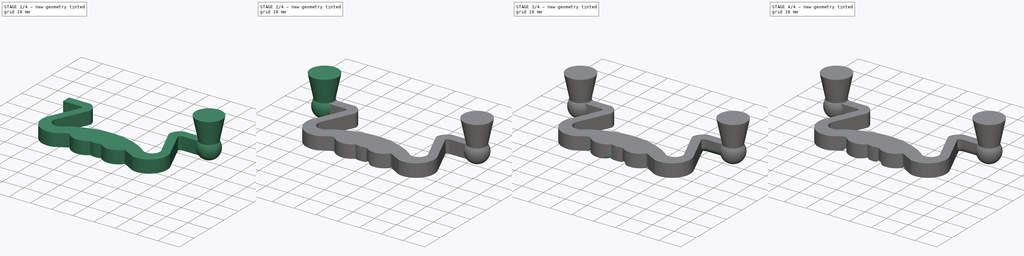
[diagram: build sequence overview — one tinted view per stage of 4, left to right]
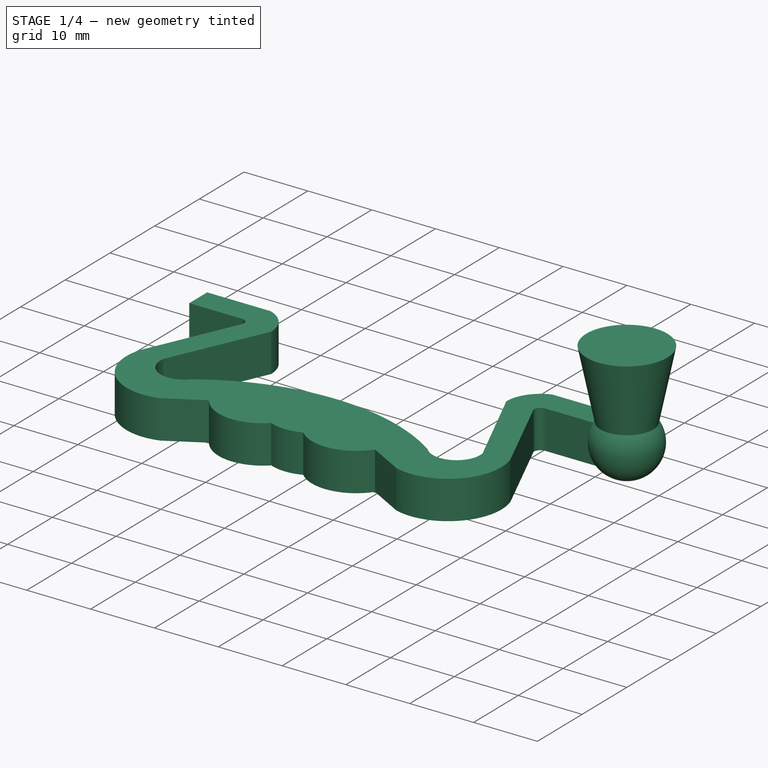
[diagram: stage 1 of 4 — iso view after this stage's code; geometry added in this stage tinted green]
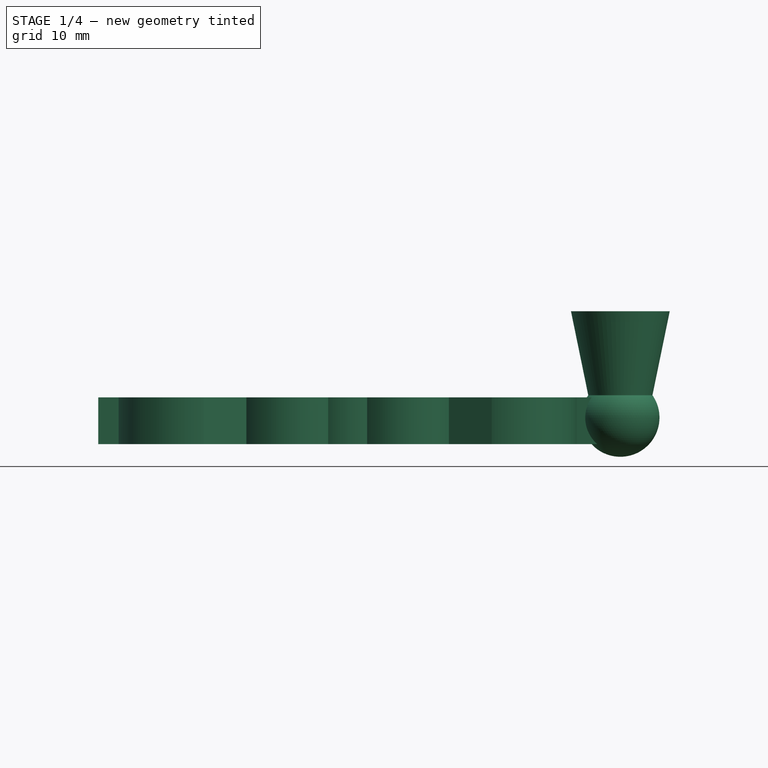
[diagram: stage 1 of 4 — front view after this stage's code; geometry added in this stage tinted green]
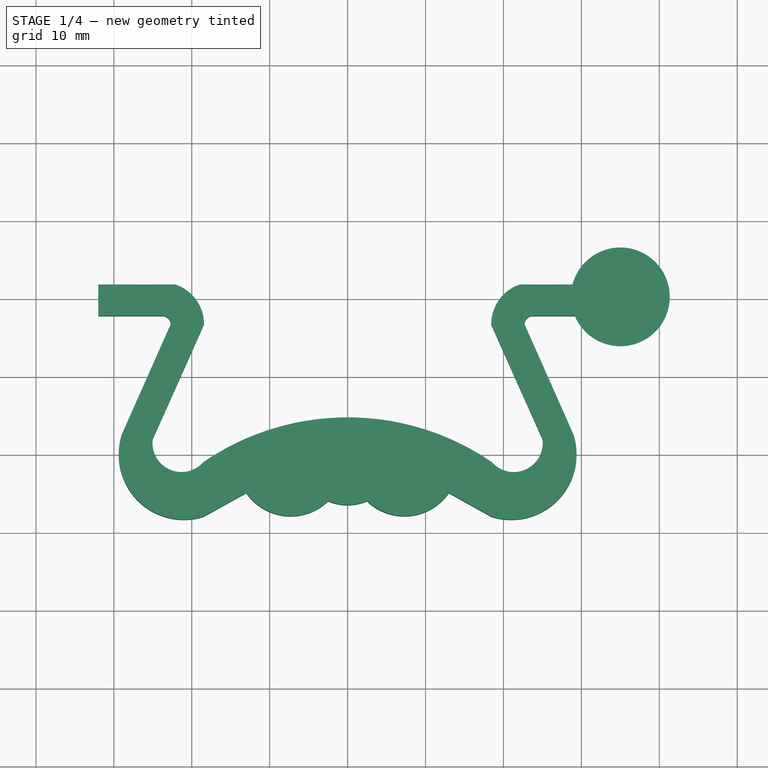
[diagram: stage 1 of 4 — top view after this stage's code; geometry added in this stage tinted green]
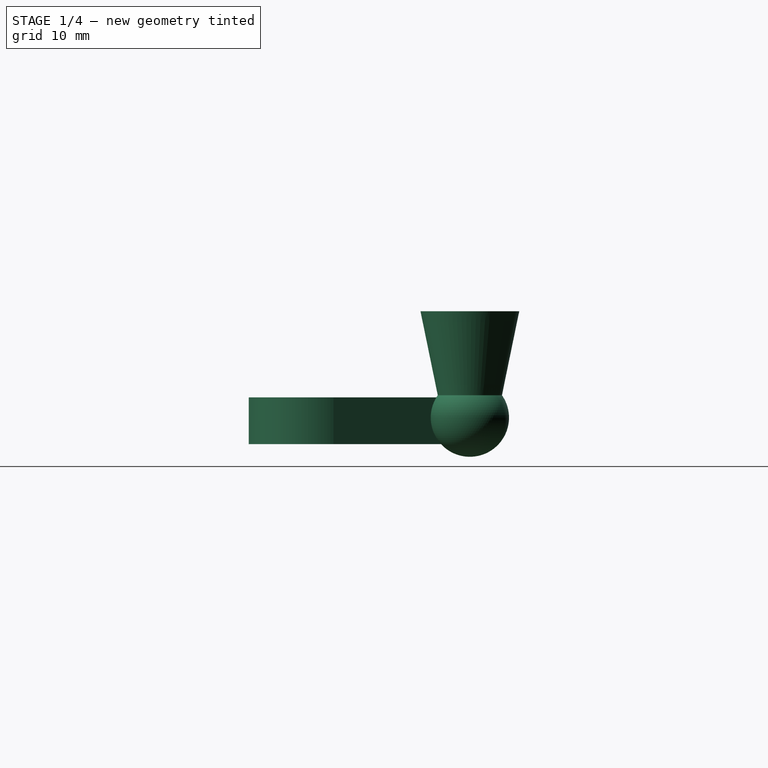
[diagram: stage 1 of 4 — right view after this stage's code; geometry added in this stage tinted green]
FCSTD DOCUMENT  (FreeCAD 1.1R20260325 (Git shallow))
Label: msf077
License: All rights reserved
LicenseURL: https://en.wikipedia.org/wiki/All_rights_reserved
objects: Sketcher::SketchObject×5, PartDesign::Pocket×3, PartDesign::Mirrored×2, PartDesign::MultiTransform×2, PartDesign::Fillet×2, App::LinkGroup×2, App::Point×2, PartDesign::Pad×1, PartDesign::Revolution×1, PartDesign::Chamfer×1, PartDesign::Body×1, App::Part×1
note: 43 computed .brp shape members not serialized (recipe doc carries the construction recipe); baked Part::Feature solids carry a one-line shape summary decoded from their .brp

FEATURE [Sketcher::SketchObject] Sketch
  ArcFitTolerance = 0
  ExternalTypes = [0]
  FullyConstrained = true
  MakeInternals = false
  MapMode = 5
  _ExternalGeoVersion = 0
  sketch-geometry (24):
    g0: LineSegment StartX=-32 StartY=1.78 StartZ=0 EndX=-32 EndY=-2.22 EndZ=0
    g1: LineSegment StartX=-32 StartY=-2.22 StartZ=0 EndX=-23.78 EndY=-2.22 EndZ=0
    g2: ArcOfCircle CenterX=-23.78 CenterY=-3.3 CenterZ=0 NormalX=0 NormalY=0 NormalZ=1 AngleXU=0 Radius=1.08 StartAngle=-1.8e-15 EndAngle=1.5708
    g3: LineSegment StartX=-22.7 StartY=-3.3 StartZ=0 EndX=-29 EndY=-17.5 EndZ=0
    g4: ArcOfCircle CenterX=-21 CenterY=-20 CenterZ=0 NormalX=0 NormalY=0 NormalZ=1 AngleXU=0 Radius=8.38153 StartAngle=2.83871 EndAngle=5.01527
    g5: LineSegment StartX=-18.5 StartY=-28 StartZ=0 EndX=-13 EndY=-24.9433 EndZ=0
    g6: ArcOfCircle CenterX=-7.3 CenterY=-21 CenterZ=0 NormalX=0 NormalY=0 NormalZ=1 AngleXU=0 Radius=6.93109 StartAngle=3.7468 EndAngle=5.47738
    g7: ArcOfCircle CenterX=9e-16 CenterY=-20 CenterZ=0 NormalX=0 NormalY=0 NormalZ=1 AngleXU=0 Radius=6.5 StartAngle=4.3176 EndAngle=5.10718
    g8: ArcOfCircle CenterX=7.3 CenterY=-21 CenterZ=0 NormalX=0 NormalY=0 NormalZ=1 AngleXU=0 Radius=6.93109 StartAngle=3.9474 EndAngle=5.67797
    g9: LineSegment StartX=13 StartY=-24.9433 StartZ=0 EndX=18.5 EndY=-28 EndZ=0
    g10: ArcOfCircle CenterX=21 CenterY=-20 CenterZ=0 NormalX=0 NormalY=0 NormalZ=1 AngleXU=0 Radius=8.38153 StartAngle=4.4095 EndAngle=6.58607
    g11: LineSegment StartX=29 StartY=-17.5 StartZ=0 EndX=22.7 EndY=-3.3 EndZ=0
    g12: ArcOfCircle CenterX=23.78 CenterY=-3.3 CenterZ=0 NormalX=0 NormalY=0 NormalZ=1 AngleXU=0 Radius=1.08 StartAngle=1.5708 EndAngle=3.14159
    g13: LineSegment StartX=23.78 StartY=-2.22 StartZ=0 EndX=32 EndY=-2.22 EndZ=0
    g14: LineSegment StartX=32 StartY=-2.22 StartZ=0 EndX=32 EndY=1.78 EndZ=0
    g15: LineSegment StartX=32 StartY=1.78 StartZ=0 EndX=22.1 EndY=1.78 EndZ=0
    g16: ArcOfCircle CenterX=23.78 CenterY=-3.3 CenterZ=0 NormalX=0 NormalY=0 NormalZ=1 AngleXU=0 Radius=5.35059 StartAngle=1.89018 EndAngle=3.14159
    g17: LineSegment StartX=18.4294 StartY=-3.3 StartZ=0 EndX=25 EndY=-18 EndZ=0
    g18: ArcOfCircle CenterX=21.3162 CenterY=-18.56 CenterZ=0 NormalX=0 NormalY=0 NormalZ=1 AngleXU=0 Radius=3.72617 StartAngle=3.85555 EndAngle=6.43405
    g19: ArcOfCircle CenterX=-2e-15 CenterY=-48 CenterZ=0 NormalX=0 NormalY=0 NormalZ=1 AngleXU=0 Radius=32.73 StartAngle=0.970083 EndAngle=2.17151
    g20: ArcOfCircle CenterX=-21.3162 CenterY=-18.56 CenterZ=0 NormalX=0 NormalY=0 NormalZ=1 AngleXU=0 Radius=3.72617 StartAngle=2.99073 EndAngle=5.56923
    g21: LineSegment StartX=-25 StartY=-18 StartZ=0 EndX=-18.4294 EndY=-3.3 EndZ=0
    g22: ArcOfCircle CenterX=-23.78 CenterY=-3.3 CenterZ=0 NormalX=0 NormalY=0 NormalZ=1 AngleXU=0 Radius=5.35059 StartAngle=0 EndAngle=1.25141
    g23: LineSegment StartX=-22.1 StartY=1.78 StartZ=0 EndX=-32 EndY=1.78 EndZ=0
  constraints (71):
    c: Vertical(g0)
    c: Coincident(g0,g1)
    c: Horizontal(g1)
    c: Coincident(g2,g1)
    c: Coincident(g3,g2)
    c: Coincident(g4,g3)
    c: Coincident(g5,g4)
    c: Coincident(g6,g5)
    c: Coincident(g7,g6)
    c: Coincident(g8,g7)
    c: Coincident(g9,g8)
    c: Coincident(g10,g9)
    c: Coincident(g11,g10)
    c: Coincident(g12,g11)
    c: Coincident(g13,g12)
    c: Horizontal(g13)
    c: Coincident(g14,g13)
    c: Vertical(g14)
    c: Coincident(g15,g14)
    c: Horizontal(g15)
    c: Coincident(g16,g15)
    c: Coincident(g17,g16)
    c: Coincident(g18,g17)
    c: Coincident(g19,g18)
    c: Coincident(g20,g19)
    c: Coincident(g21,g20)
    c: Coincident(g22,g21)
    c: Coincident(g23,g22)
    c: Coincident(g23,g0)
    c: Horizontal(g18,g19)
    c: Symmetric(g6,g8,g-2)
    c: Symmetric(g5,g8,g-2)
    c: Symmetric(g20,g17,g-2)
    c: Symmetric(g3,g10,g-2)
    c: Symmetric(g0,g14,g-2)
    c: Symmetric(g22,g15,g-2)
    c: Symmetric(g1,g12,g-2)
    c: Symmetric(g16,g21,g-2)
    c: Symmetric(g2,g11,g-2)
    c: Symmetric(g4,g9,g-2)
    c: Symmetric(g20,g18,g-2)
    c: DistanceX(g14) = 32
    c: DistanceX(g15,g15) = 9.9
    c: DistanceX(g-1,g9) = 18.5
    c: DistanceX(g6,g-1) = 2.5
    c: DistanceX(g6,g-1) = 7.3
    c: DistanceX(g5,g-1) = 13
    c: DistanceX(g19,g-1) = 18.5
    c: DistanceX(g3,g-1) = 29
    c: DistanceX(g20,g-1) = 25
    c: DistanceY(g7,g-1) = 26
    c: DistanceY(g7,g-1) = 20
    c: Horizontal(g7,g6)
    c: DistanceY(g6,g-1) = 21
    c: DistanceY(g4,g-1) = 20
    c: DistanceY(g20,g-1) = 18.56
    c: DistanceX(g4,g-1) = 21
    c: DistanceY(g10,g-1) = 17.5
    c: DistanceY(g17,g-1) = 18
    c: Horizontal(g10,g4)
    c: Coincident(g16,g12)
    c: Coincident(g22,g2)
    c: DistanceY(g2,g-1) = 3.3
    c: DistanceX(g2,g-1) = 23.78
    c: Vertical(g12,g12)
    c: Horizontal(g11,g12)
    c: DistanceY(g2,g1) = 1.08
    c: DistanceY(g14,g14) = 4
    c: Horizontal(g2,g21)
    c: DistanceY(g19,g-1) = 21
    c: DistanceY(g19,g-1) = 48
FEATURE [PartDesign::Pad] Pad
  Direction = (0,0,1)
  Length = 6
  Length2 = 10
  Profile = -> Sketch
  ReferenceAxis = -> Sketch [N_Axis]
  SideType = 0
  Suppressed = false
  Type = 0
  Type2 = 0
FEATURE [Sketcher::SketchObject] Sketch001
  ArcFitTolerance = 0
  AttachmentOffset = pos=(0,3,3) rot=(0,0,1;4.71239rad)
  ExternalTypes = [0]
  FullyConstrained = true
  MakeInternals = false
  MapMode = 5
  Placement = pos=(35,0,3) rot=(0,1,0;1.5708rad)
  _ExternalGeoVersion = 0
  sketch-geometry (4):
    g0: ArcOfCircle CenterX=-0.404329 CenterY=0 CenterZ=0 NormalX=0 NormalY=0 NormalZ=1 AngleXU=0 Radius=5.02433 StartAngle=4.10302 EndAngle=6.28319
    g1: LineSegment StartX=-3.28 StartY=-4.12 StartZ=0 EndX=-14.06 EndY=-6.34 EndZ=0
    g2: LineSegment StartX=-14.06 StartY=-6.34 StartZ=0 EndX=-14.06 EndY=0 EndZ=0
    g3: LineSegment StartX=-14.06 StartY=0 StartZ=0 EndX=4.62 EndY=-1.2e-15 EndZ=0
  constraints (13):
    c: PointOnObject(g0,g-1)
    c: Coincident(g1,g0)
    c: Coincident(g2,g1)
    c: PointOnObject(g2,g-1)
    c: Vertical(g2)
    c: Coincident(g3,g2)
    c: Coincident(g3,g0)
    c: DistanceY(g2,g2) = 6.34
    c: PointOnObject(g0,g3)
    c: DistanceX(g-1,g0) = 4.62
    c: DistanceX(g0,g-1) = 3.28
    c: DistanceY(g0,g-1) = 4.12
    c: DistanceX(g1,g-1) = 14.06
FEATURE [PartDesign::Revolution] Revolution
  Angle = 360
  Angle2 = 0
  Axis = (2e-16,0,-1)
  Base = (35,0,3)
  BaseFeature = -> Pad
  FuseOrder = 0
  Profile = -> Sketch001
  ReferenceAxis = -> Sketch001 [H_Axis]
  Reversed = true
  Suppressed = false
  Type = 0
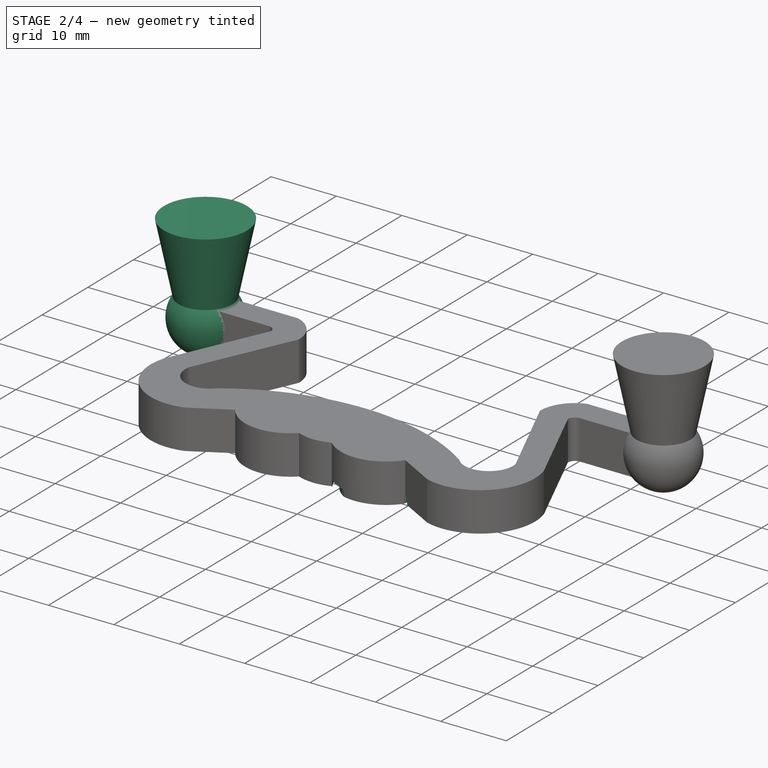
[diagram: stage 2 of 4 — iso view after this stage's code; geometry added in this stage tinted green]
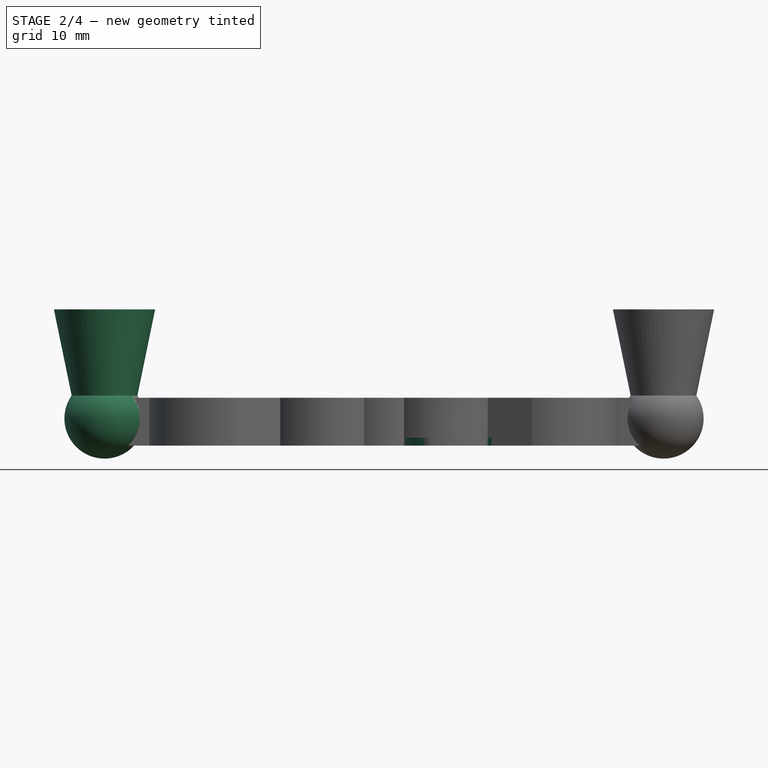
[diagram: stage 2 of 4 — front view after this stage's code; geometry added in this stage tinted green]
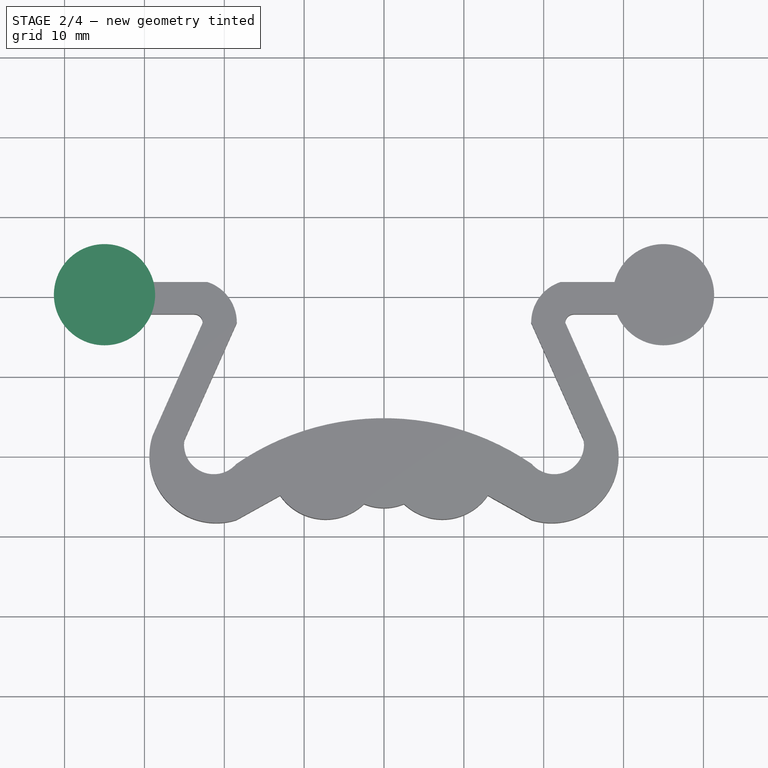
[diagram: stage 2 of 4 — top view after this stage's code; geometry added in this stage tinted green]
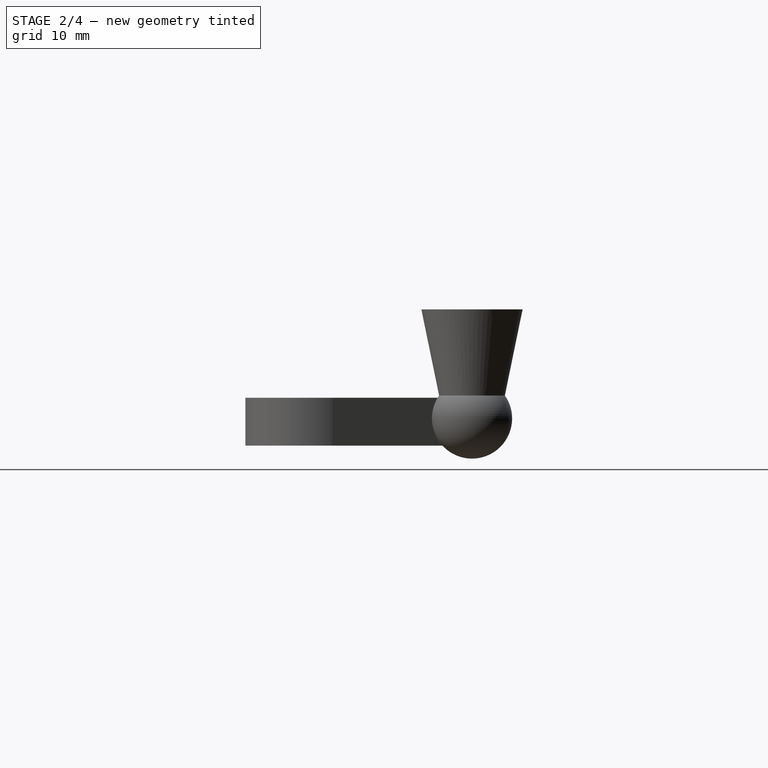
[diagram: stage 2 of 4 — right view after this stage's code; geometry added in this stage tinted green]
FEATURE [PartDesign::Mirrored] Mirrored
  MirrorPlane = -> YZ_Plane001
  Suppressed = false
  TransformMode = 0
FEATURE [PartDesign::MultiTransform] MultiTransform
  BaseFeature = -> Revolution
  Originals = -> [Revolution]
  Suppressed = false
  TransformMode = 0
  Transformations = -> [Mirrored]
FEATURE [Sketcher::SketchObject] Sketch002
  ArcFitTolerance = 0
  ExternalTypes = [0]
  FullyConstrained = false
  MakeInternals = false
  MapMode = 5
  Placement = pos=(0,0,0) rot=(1,0,0;3.14159rad)
  _ExternalGeoVersion = 0
  sketch-geometry (6):
    g0: ArcOfCircle CenterX=8.37325 CenterY=23.2848 CenterZ=0 NormalX=0 NormalY=0 NormalZ=1 AngleXU=0 Radius=5.42921 StartAngle=4.33984 EndAngle=6.97405
    g1: ArcOfCircle CenterX=7.9611 CenterY=22.3638 CenterZ=0 NormalX=0 NormalY=0 NormalZ=1 AngleXU=0 Radius=4.42164 StartAngle=0.796764 EndAngle=4.35084
    g2: ArcOfCircle CenterX=8.91823 CenterY=22.7616 CenterZ=0 NormalX=0 NormalY=0 NormalZ=1 AngleXU=0 Radius=2.4556 StartAngle=0.183027 EndAngle=3.90789
    g3: ArcOfCircle CenterX=9.44753 CenterY=23.8657 CenterZ=0 NormalX=0 NormalY=0 NormalZ=1 AngleXU=0 Radius=3.62796 StartAngle=4.02624 EndAngle=7.06929
    g4: LineSegment StartX=11.3328 StartY=23.2085 StartZ=0 EndX=11.0519 EndY=25.5257 EndZ=0
    g5: LineSegment StartX=12.0111 StartY=26.4328 StartZ=0 EndX=12.5575 EndY=26.7442 EndZ=0
  constraints (6):
    c: Coincident(g1,g0)
    c: Coincident(g3,g2)
    c: Coincident(g4,g2)
    c: Coincident(g4,g1)
    c: Coincident(g5,g3)
    c: Coincident(g5,g0)
FEATURE [PartDesign::Pocket] Pocket
  BaseFeature = -> MultiTransform
  Direction = (0,1e-16,1)
  Length = 1
  Length2 = 5
  Profile = -> Sketch002
  ReferenceAxis = -> Sketch002 [N_Axis]
  SideType = 0
  Suppressed = false
  Type = 0
  Type2 = 0
FEATURE [Sketcher::SketchObject] Sketch003
  ArcFitTolerance = 0
  ExternalTypes = [0]
  FullyConstrained = false
  MakeInternals = false
  MapMode = 5
  Placement = pos=(0,0,0) rot=(1,0,0;3.14159rad)
  _ExternalGeoVersion = 0
  sketch-geometry (4):
    g0: ArcOfCircle CenterX=8.78863 CenterY=22.2095 CenterZ=0 NormalX=0 NormalY=0 NormalZ=1 AngleXU=0 Radius=6.37434 StartAngle=1.16895 EndAngle=5.27179
    g1: ArcOfCircle CenterX=8.78863 CenterY=22.2095 CenterZ=0 NormalX=0 NormalY=0 NormalZ=1 AngleXU=0 Radius=7.27003 StartAngle=1.46029 EndAngle=5.028
    g2: LineSegment StartX=9.59035 StartY=29.4352 StartZ=0 EndX=11.2818 EndY=28.0761 EndZ=0
    g3: LineSegment StartX=11.0452 StartY=15.2986 StartZ=0 EndX=12.1714 EndY=16.8068 EndZ=0
  constraints (5):
    c: Coincident(g2,g1)
    c: Coincident(g2,g0)
    c: Coincident(g3,g1)
    c: Coincident(g3,g0)
    c: Coincident(g0,g1)
FEATURE [PartDesign::Pocket] Pocket001
  BaseFeature = -> Pocket
  Direction = (0,1e-16,1)
  Length = 1
  Length2 = 5
  Profile = -> Sketch003
  ReferenceAxis = -> Sketch003 [N_Axis]
  SideType = 0
  Suppressed = false
  Type = 0
  Type2 = 0
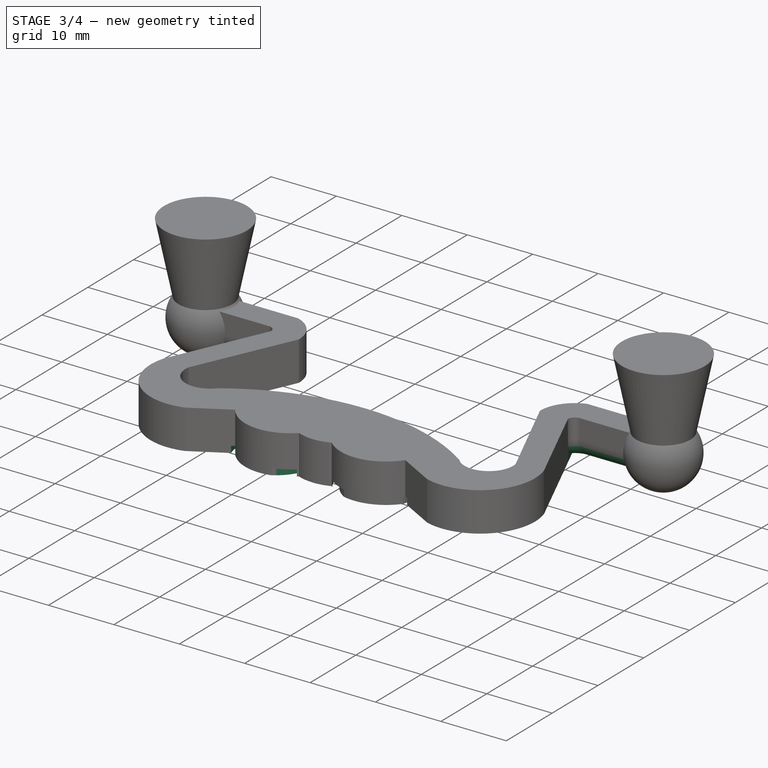
[diagram: stage 3 of 4 — iso view after this stage's code; geometry added in this stage tinted green]
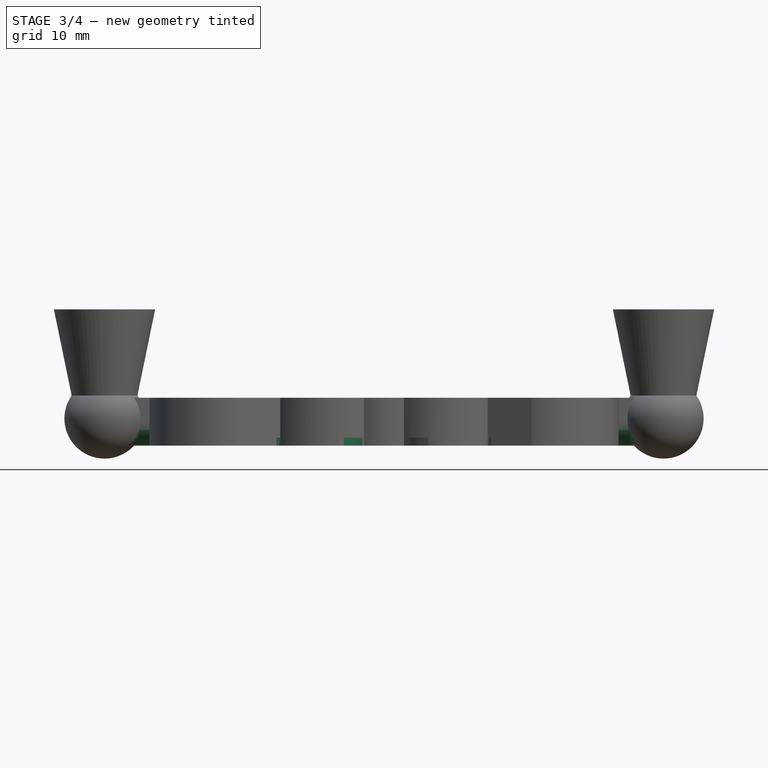
[diagram: stage 3 of 4 — front view after this stage's code; geometry added in this stage tinted green]
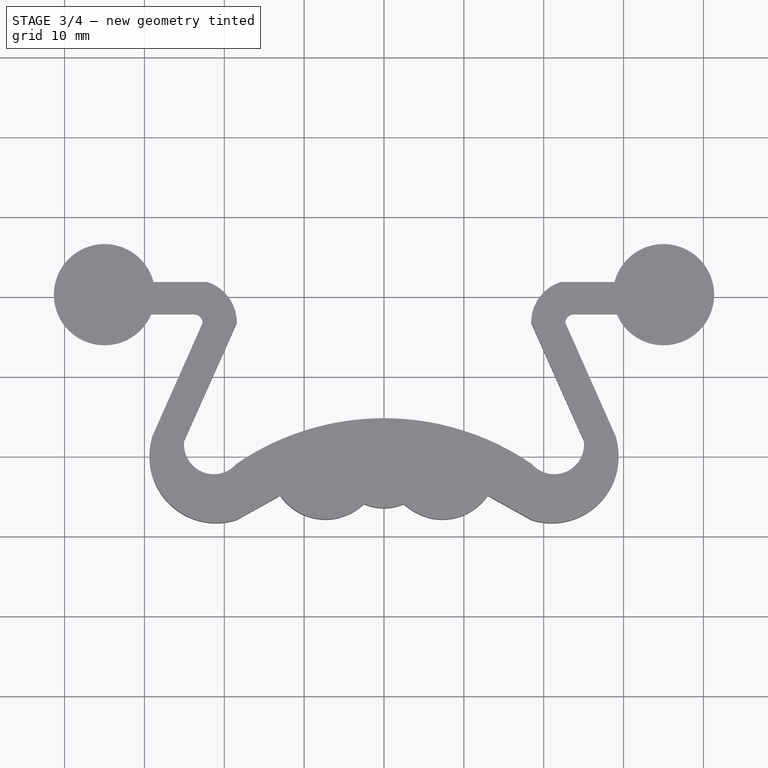
[diagram: stage 3 of 4 — top view after this stage's code; geometry added in this stage tinted green]
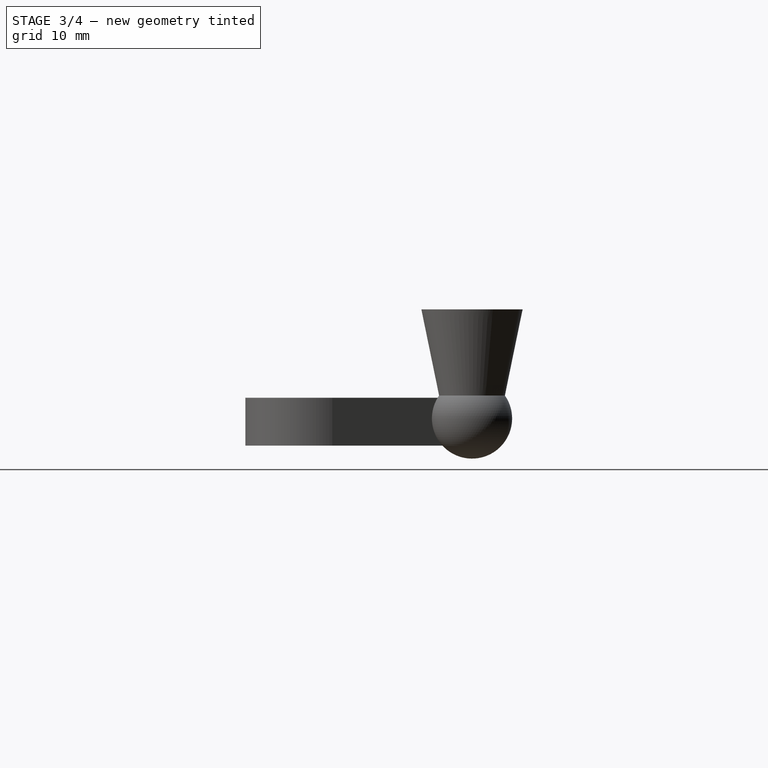
[diagram: stage 3 of 4 — right view after this stage's code; geometry added in this stage tinted green]
FEATURE [Sketcher::SketchObject] Sketch004
  ArcFitTolerance = 0
  ExternalTypes = [0]
  FullyConstrained = false
  MakeInternals = false
  MapMode = 5
  Placement = pos=(0,0,0) rot=(1,0,0;3.14159rad)
  _ExternalGeoVersion = 0
  sketch-geometry (4):
    g0: LineSegment StartX=3.03254 StartY=13.6466 StartZ=0 EndX=0 EndY=19.9742 EndZ=0
    g1: LineSegment StartX=2.14295 StartY=13.4233 StartZ=0 EndX=0 EndY=18.4771 EndZ=0
    g2: LineSegment StartX=0 StartY=19.9742 StartZ=0 EndX=0 EndY=18.4771 EndZ=0
    g3: LineSegment StartX=2.14295 StartY=13.4233 StartZ=0 EndX=3.03254 EndY=13.6466 EndZ=0
  constraints (6):
    c: PointOnObject(g0,g-2)
    c: PointOnObject(g1,g-2)
    c: Coincident(g2,g0)
    c: Coincident(g2,g1)
    c: Coincident(g3,g1)
    c: Coincident(g3,g0)
FEATURE [PartDesign::Pocket] Pocket002
  BaseFeature = -> Pocket001
  Direction = (0,1e-16,1)
  Length = 1
  Length2 = 5
  Profile = -> Sketch004
  ReferenceAxis = -> Sketch004 [N_Axis]
  SideType = 0
  Suppressed = false
  Type = 0
  Type2 = 0
FEATURE [PartDesign::Mirrored] Mirrored001
  MirrorPlane = -> YZ_Plane001
  Suppressed = false
  TransformMode = 0
FEATURE [PartDesign::MultiTransform] MultiTransform001
  BaseFeature = -> Pocket002
  Originals = -> [Pocket,Pocket001,Pocket002]
  Suppressed = false
  TransformMode = 0
  Transformations = -> [Mirrored001]
FEATURE [PartDesign::Fillet] Fillet
  Base = -> MultiTransform001 [Edge104,Edge17,Edge4,Edge98]
  BaseFeature = -> MultiTransform001
  Radius = 3
  SupportTransform = false
  Suppressed = false
  UseAllEdges = false
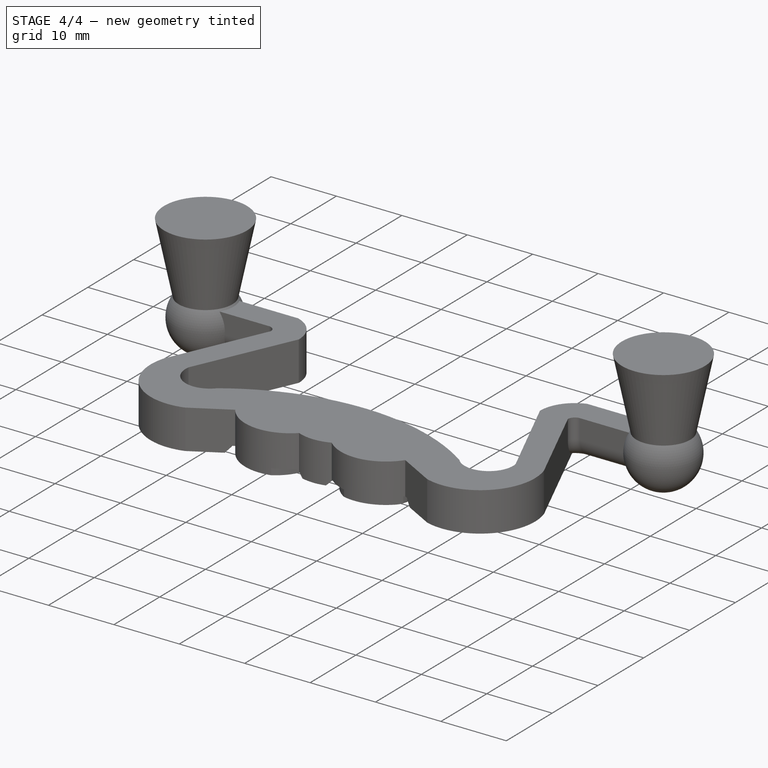
[diagram: stage 4 of 4 — iso view after this stage's code; geometry added in this stage tinted green]
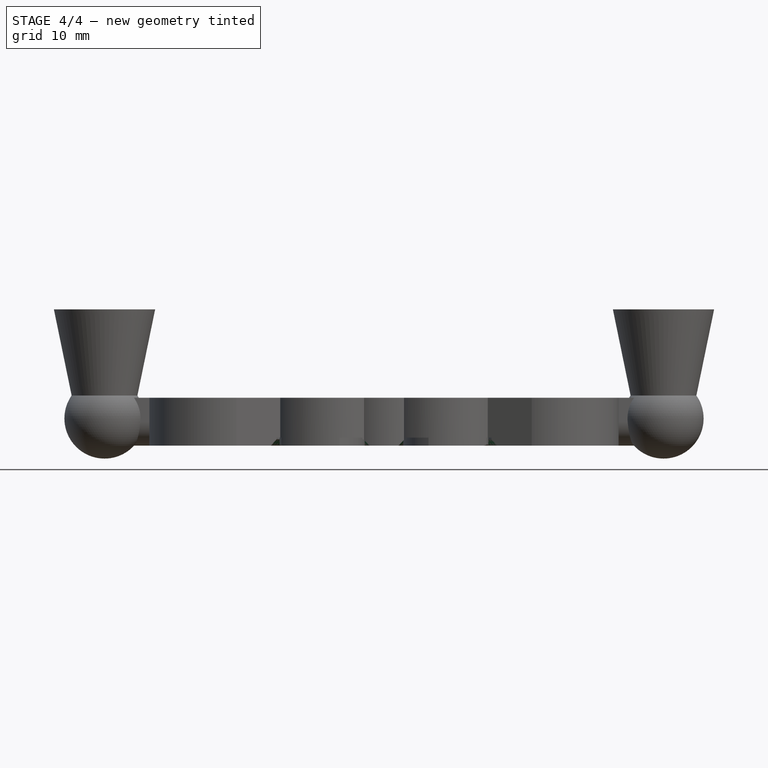
[diagram: stage 4 of 4 — front view after this stage's code; geometry added in this stage tinted green]
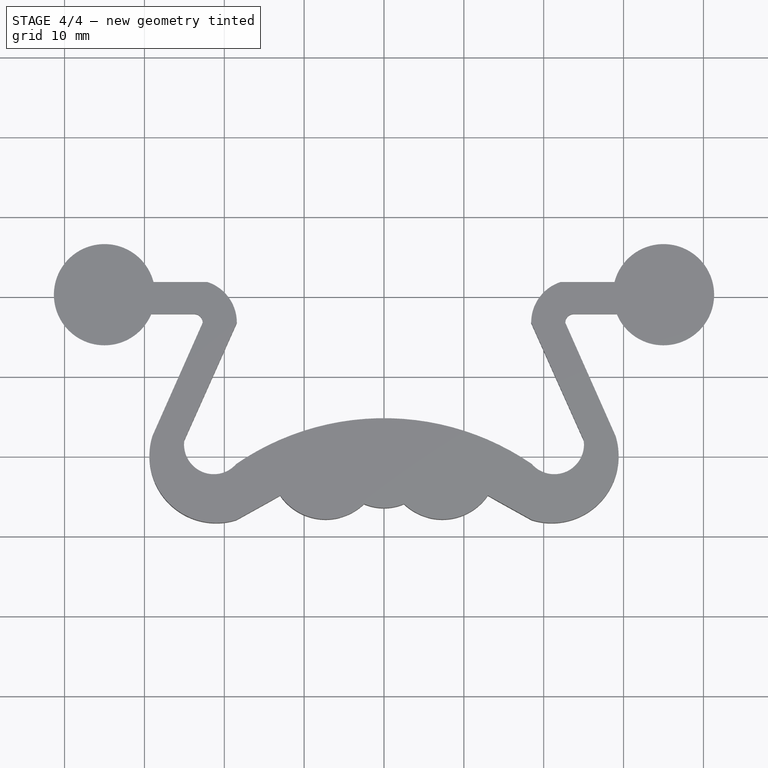
[diagram: stage 4 of 4 — top view after this stage's code; geometry added in this stage tinted green]
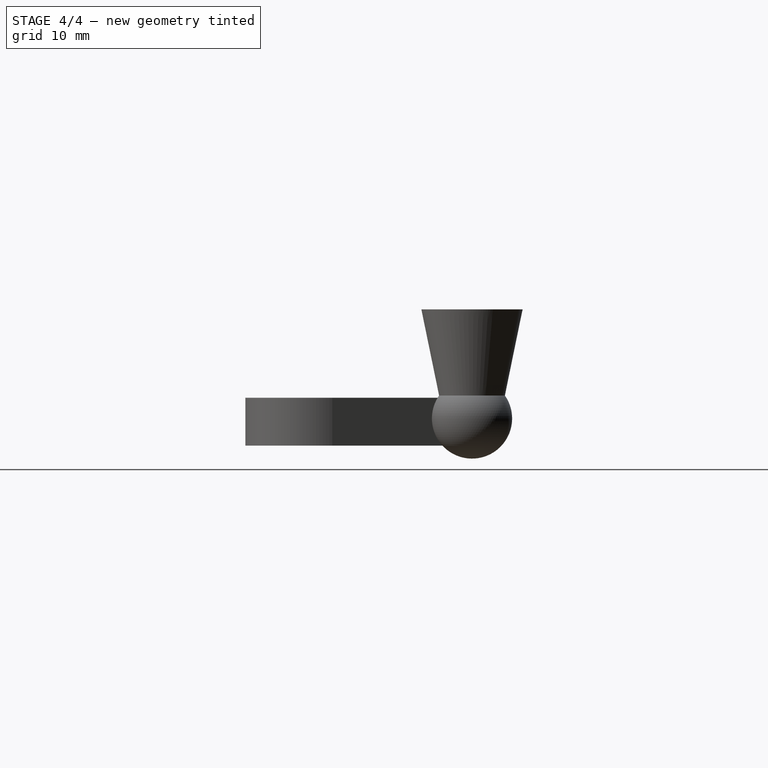
[diagram: stage 4 of 4 — right view after this stage's code; geometry added in this stage tinted green]
FEATURE [PartDesign::Chamfer] Chamfer
  Angle = 45
  Base = -> Fillet [Edge101,Edge15,Edge129,Edge135,Edge143,Edge140,Edge132,Edge131]
  BaseFeature = -> Fillet
  ChamferType = 0
  FlipDirection = false
  Size = 0.8
  Size2 = 1
  SupportTransform = false
  Suppressed = false
  UseAllEdges = false
FEATURE [PartDesign::Fillet] Fillet001
  Base = -> Chamfer [Edge149,Edge12]
  BaseFeature = -> Chamfer
  Radius = 0.2
  SupportTransform = false
  Suppressed = false
  UseAllEdges = false
FEATURE [PartDesign::Body] Body
  AllowCompound = true
  Group = -> [Sketch,Pad,Sketch001,Revolution,MultiTransform,Mirrored,Sketch002,Pocket,Sketch003,Pocket001,Sketch004,Pocket002,MultiTransform001,Mirrored001,Fillet,Chamfer,Fillet001]
  Origin = -> Origin001
  Placement = pos=(0,0,17.06) rot=(0,1,0;3.14159rad)
  Tip = -> Fillet001
FEATURE [App::Part] Part
  Group = -> [Body]
  Origin = -> Origin
FEATURE [App::LinkGroup] LinkGroup  label="Drawer handle, link this "
  ElementList = -> [Part]
  LinkMode = 0
FEATURE [App::LinkGroup] LinkGroup001  label="Drawer handle, hide this"
  ElementList = -> [LinkGroup]
  LinkMode = 0
FEATURE [App::Point] Origin002  label="Origin"
  Role = Origin
FEATURE [App::Point] Origin003  label="Origin"
  Role = Origin
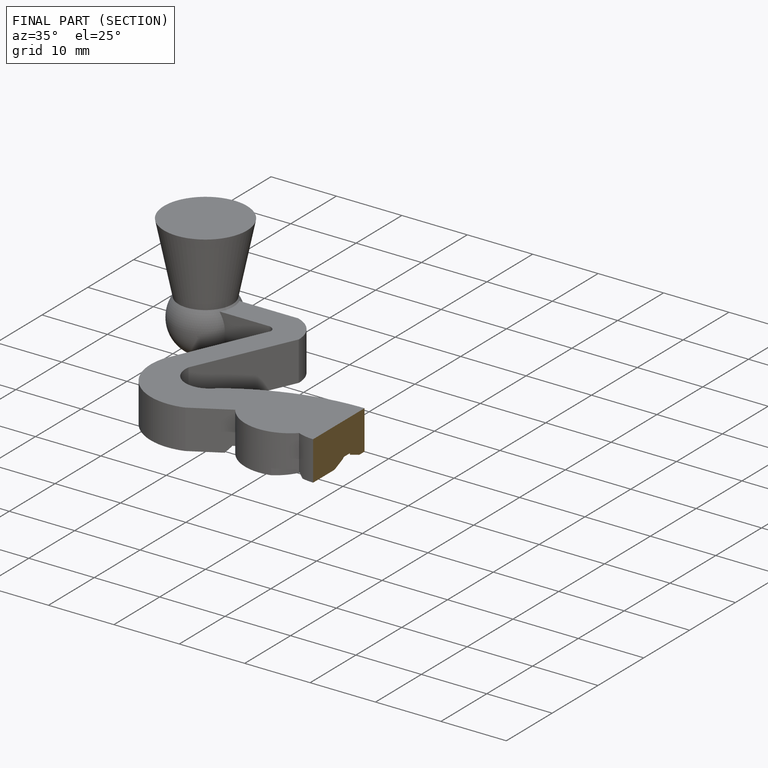
[diagram: finished part — half-section view (interior)]
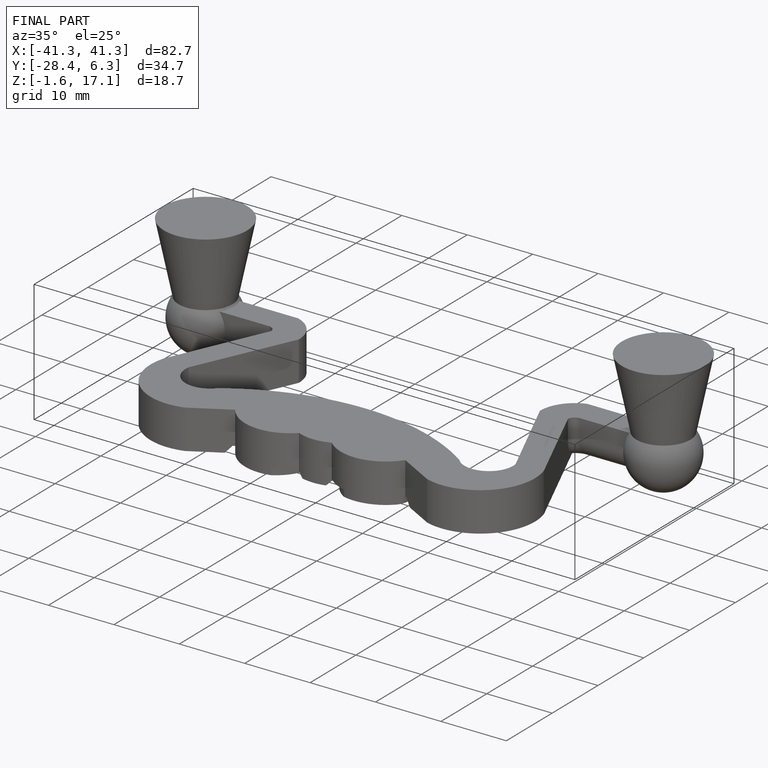
[diagram: finished part — iso view with bounding-box wireframe]
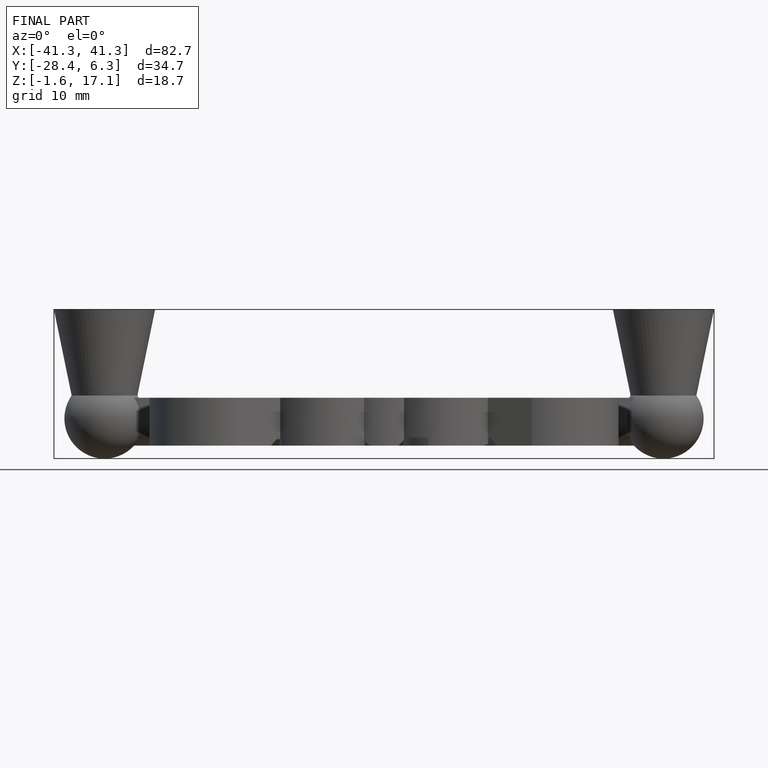
[diagram: finished part — front view with bounding-box wireframe]
